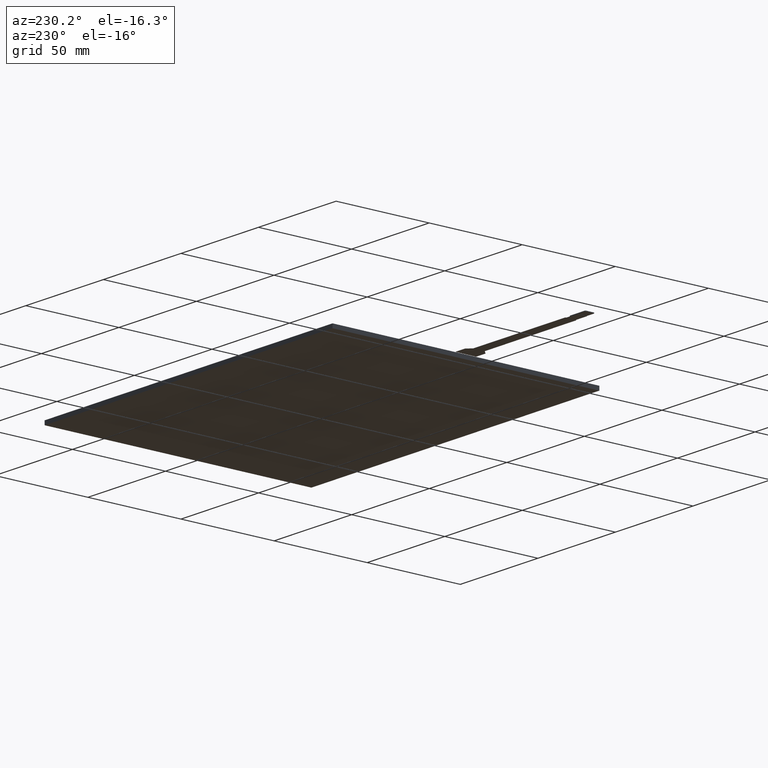
[diagram: clean part render]
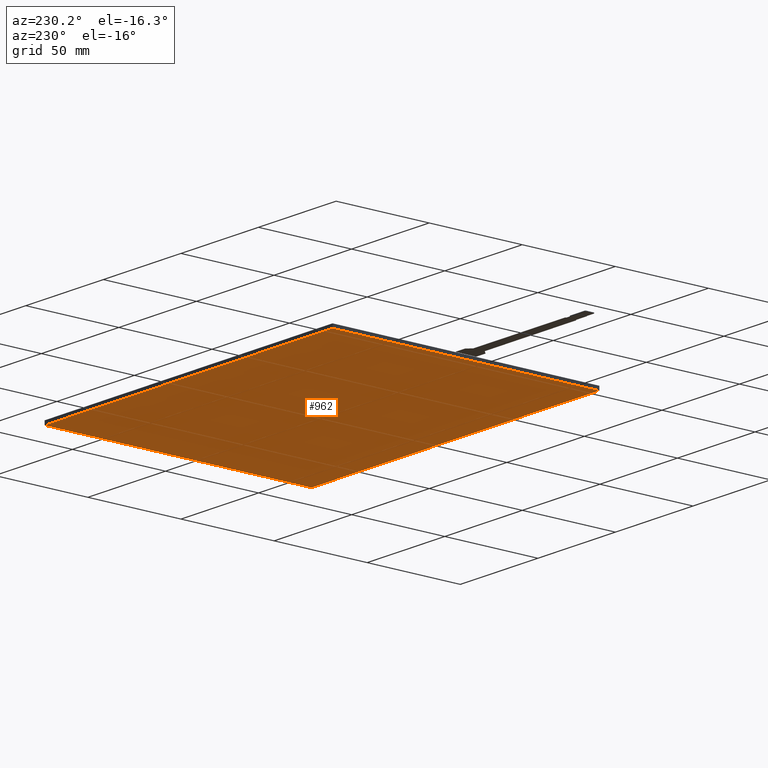
[diagram: same view with one face highlighted and labeled with its STEP entity id]
A machine part, auxiliary view. The second image highlights one B-rep face of the part: STEP entity #962.
In plain terms, the highlighted planar face has unit normal (0, 0, -1).
Its self-contained STEP definition (entity closure, byte-faithful):
#52=FACE_OUTER_BOUND('',#106,.T.);
#106=EDGE_LOOP('',(#693,#694,#695,#696));
#172=LINE('',#1403,#298);
#174=LINE('',#1407,#300);
#176=LINE('',#1411,#302);
#178=LINE('',#1414,#304);
#298=VECTOR('',#1137,10.);
#300=VECTOR('',#1141,10.);
#302=VECTOR('',#1145,10.);
#304=VECTOR('',#1149,10.);
#415=VERTEX_POINT('',#1400);
#416=VERTEX_POINT('',#1402);
#417=VERTEX_POINT('',#1406);
#418=VERTEX_POINT('',#1410);
#516=EDGE_CURVE('',#416,#415,#172,.T.);
#518=EDGE_CURVE('',#417,#416,#174,.T.);
#520=EDGE_CURVE('',#418,#417,#176,.T.);
#522=EDGE_CURVE('',#415,#418,#178,.T.);
#693=ORIENTED_EDGE('',*,*,#522,.T.);
#694=ORIENTED_EDGE('',*,*,#520,.T.);
#695=ORIENTED_EDGE('',*,*,#518,.T.);
#696=ORIENTED_EDGE('',*,*,#516,.T.);
#916=PLANE('',#1035);
#962=ADVANCED_FACE('',(#52),#916,.T.);
#1035=AXIS2_PLACEMENT_3D('',#1416,#1152,#1153);
#1137=DIRECTION('',(-2.47921401172401E-16,1.,0.));
#1141=DIRECTION('',(-1.,-1.43563322149805E-16,0.));
#1145=DIRECTION('',(-1.239607005862E-16,-1.,0.));
#1149=DIRECTION('',(1.,0.,0.));
#1152=DIRECTION('center_axis',(0.,0.,-1.));
#1153=DIRECTION('ref_axis',(-1.,0.,0.));
#1400=CARTESIAN_POINT('',(-93.65,71.65,-2.1));
#1402=CARTESIAN_POINT('',(-93.65,-71.65,-2.1));
#1403=CARTESIAN_POINT('',(-93.65,71.65,-2.1));
#1406=CARTESIAN_POINT('',(91.95,-71.65,-2.1));
#1407=CARTESIAN_POINT('',(-93.65,-71.65,-2.1));
#1410=CARTESIAN_POINT('',(91.95,71.65,-2.1));
#1411=CARTESIAN_POINT('',(91.95,-71.65,-2.1));
#1414=CARTESIAN_POINT('',(91.95,71.65,-2.1));
#1416=CARTESIAN_POINT('Origin',(-0.850000000000009,-8.88178419700125E-15,
-2.1));